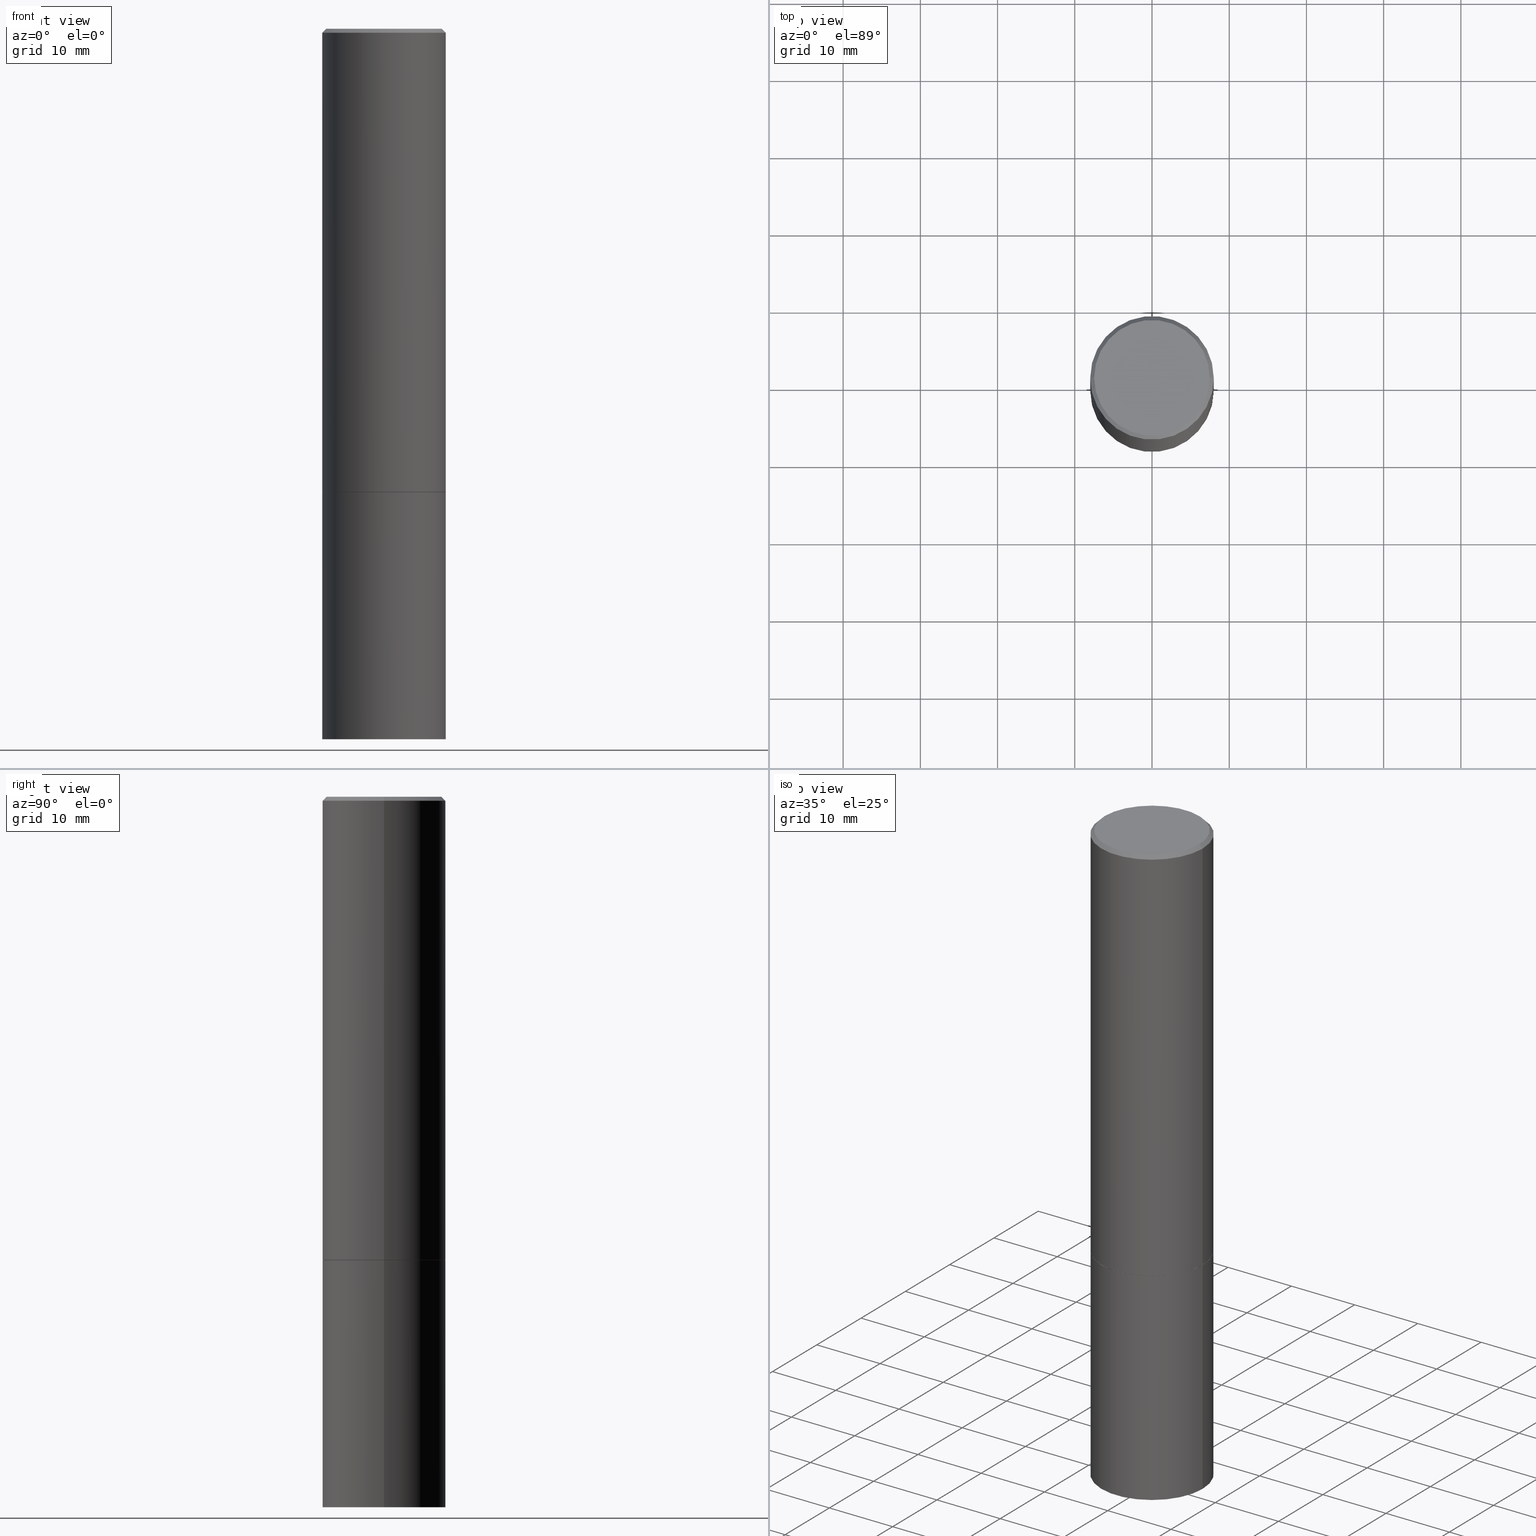
[diagram: canonical four-view strip — front | top / right | iso, engineering-drawing reading convention]
A machine part, canonical four-view strip (front | top / right | iso — engineering-drawing reading convention). The complete STEP part file that produces these views, byte-faithful:
ISO-10303-21;
HEADER;
FILE_DESCRIPTION (( 'STEP AP203' ),
    '1' );
FILE_NAME ('44725.STEP',
    '2024-02-28T07:54:57',
    ( '' ),
    ( '' ),
    'SwSTEP 2.0',
    'SolidWorks 2023',
    '' );
FILE_SCHEMA (( 'CONFIG_CONTROL_DESIGN' ));
ENDSEC;

DATA;
#1 = ORIENTED_EDGE ( 'NONE', *, *, #317, .T. ) ;
#2 = CC_DESIGN_PERSON_AND_ORGANIZATION_ASSIGNMENT ( #364, #88, ( #236 ) ) ;
#3 = CARTESIAN_POINT ( 'NONE',  ( 5.776686413970529753E-29, -8.247577218615278049E-15, -2.362199999999999633 ) ) ;
#4 = CLOSED_SHELL ( 'NONE', ( #354, #159, #183, #192 ) ) ;
#5 = COORDINATED_UNIVERSAL_TIME_OFFSET ( 5, 0, .BEHIND. ) ;
#6 = ORIENTED_EDGE ( 'NONE', *, *, #36, .T. ) ;
#7 = ORIENTED_EDGE ( 'NONE', *, *, #72, .T. ) ;
#8 = ORIENTED_EDGE ( 'NONE', *, *, #348, .F. ) ;
#9 = AXIS2_PLACEMENT_3D ( 'NONE', #248, #331, #166 ) ;
#10 = EDGE_CURVE ( 'NONE', #138, #300, #213, .T. ) ;
#11 = CARTESIAN_POINT ( 'NONE',  ( 2.199284095337378223E-15, 0.3149499999999873512, -3.622000000000000774 ) ) ;
#12 = LINE ( 'NONE', #353, #357 ) ;
#13 = MANIFOLD_SOLID_BREP ( 'Body-Move/Copy2[2]', #53 ) ;
#14 = DIRECTION ( 'NONE',  ( -1.000000000000000000, 6.982962677686265922E-15, -4.876176775795935793E-29 ) ) ;
#15 = DIRECTION ( 'NONE',  ( -2.445468806185136597E-29, 3.491481338843145583E-15, 1.000000000000000000 ) ) ;
#16 = FACE_OUTER_BOUND ( 'NONE', #173, .T. ) ;
#17 = EDGE_CURVE ( 'NONE', #231, #175, #350, .T. ) ;
#18 = DIRECTION ( 'NONE',  ( -2.445468806185136597E-29, 3.491481338843145583E-15, 1.000000000000000000 ) ) ;
#19 = APPLICATION_PROTOCOL_DEFINITION ( 'international standard', 'config_control_design', 1994, #100 ) ;
#20 = CIRCLE ( 'NONE', #69, 0.3149500000000000077 ) ;
#21 = CIRCLE ( 'NONE', #9, 0.3139500000000000068 ) ;
#22 = CC_DESIGN_PERSON_AND_ORGANIZATION_ASSIGNMENT ( #310, #259, ( #236 ) ) ;
#23 = PERSON_AND_ORGANIZATION_ROLE ( 'design_owner' ) ;
#24 = ORIENTED_EDGE ( 'NONE', *, *, #10, .T. ) ;
#25 = CARTESIAN_POINT ( 'NONE',  ( 4.890937612370288923E-31, -6.982962677686312563E-17, -0.02000000000000006287 ) ) ;
#26 = EDGE_CURVE ( 'NONE', #175, #366, #339, .T. ) ;
#27 = CARTESIAN_POINT ( 'NONE',  ( -2.087702828670439639E-46, 2.980686340760894400E-32, 8.537024980200822558E-18 ) ) ;
#28 = VERTEX_POINT ( 'NONE', #288 ) ;
#29 = CONICAL_SURFACE ( 'NONE', #235, 0.3149499999999997302, 0.7853981633974471688 ) ;
#30 = LOCAL_TIME ( 2, 54, 57.00000000000000000, #150 ) ;
#31 = ORIENTED_EDGE ( 'NONE', *, *, #91, .F. ) ;
#32 = PERSON_AND_ORGANIZATION ( #242, #303 ) ;
#33 = DIRECTION ( 'NONE',  ( -2.445468806185136877E-29, 3.491481338843145188E-15, 1.000000000000000000 ) ) ;
#34 = SHAPE_DEFINITION_REPRESENTATION ( #278, #255 ) ;
#35 = EDGE_LOOP ( 'NONE', ( #146, #1 ) ) ;
#36 = EDGE_CURVE ( 'NONE', #28, #264, #167, .T. ) ;
#37 = AXIS2_PLACEMENT_3D ( 'NONE', #309, #63, #176 ) ;
#38 = CC_DESIGN_APPROVAL ( #226, ( #116 ) ) ;
#39 = EDGE_CURVE ( 'NONE', #138, #143, #232, .T. ) ;
#40 = DIRECTION ( 'NONE',  ( 1.000000000000000000, -6.982962677686269077E-15, 0.000000000000000000 ) ) ;
#41 = PERSON_AND_ORGANIZATION_ROLE ( 'creator' ) ;
#42 = ORIENTED_EDGE ( 'NONE', *, *, #270, .T. ) ;
#43 = DIRECTION ( 'NONE',  ( -2.445468806185136597E-29, 3.491481338843145583E-15, 1.000000000000000000 ) ) ;
#44 = AXIS2_PLACEMENT_3D ( 'NONE', #274, #76, #190 ) ;
#45 =( GEOMETRIC_REPRESENTATION_CONTEXT ( 3 ) GLOBAL_UNCERTAINTY_ASSIGNED_CONTEXT ( ( #201 ) ) GLOBAL_UNIT_ASSIGNED_CONTEXT ( ( #305, #281, #145 ) ) REPRESENTATION_CONTEXT ( 'NONE', 'WORKASPACE' ) );
#46 = DIRECTION ( 'NONE',  ( -1.000000000000000000, 6.982962677686265922E-15, -4.876176775795935793E-29 ) ) ;
#47 = DIRECTION ( 'NONE',  ( -2.445468806185136597E-29, 3.491481338843145583E-15, 1.000000000000000000 ) ) ;
#48 = FACE_OUTER_BOUND ( 'NONE', #114, .T. ) ;
#49 = AXIS2_PLACEMENT_3D ( 'NONE', #93, #209, #316 ) ;
#50 = DIRECTION ( 'NONE',  ( 1.000000000000000000, -6.982962677686266711E-15, 4.876176775795936353E-29 ) ) ;
#51 = ORIENTED_EDGE ( 'NONE', *, *, #135, .F. ) ;
#52 = ADVANCED_FACE ( 'NONE', ( #343 ), #110, .T. ) ;
#53 = CLOSED_SHELL ( 'NONE', ( #52, #299, #321, #275, #169, #109, #58, #96 ) ) ;
#54 = ORIENTED_EDGE ( 'NONE', *, *, #359, .F. ) ;
#55 = CARTESIAN_POINT ( 'NONE',  ( 0.3149500000000000077, -1.044336983261372333E-14, -2.361199999999999743 ) ) ;
#56 = FACE_OUTER_BOUND ( 'NONE', #227, .T. ) ;
#57 = ORIENTED_EDGE ( 'NONE', *, *, #344, .F. ) ;
#58 = ADVANCED_FACE ( 'NONE', ( #311 ), #184, .F. ) ;
#59 = APPROVAL_STATUS ( 'not_yet_approved' ) ;
#60 = CC_DESIGN_DATE_AND_TIME_ASSIGNMENT ( #256, #263, ( #116 ) ) ;
#61 = ORIENTED_EDGE ( 'NONE', *, *, #17, .T. ) ;
#62 = APPROVAL_PERSON_ORGANIZATION ( #251, #295, #70 ) ;
#63 = DIRECTION ( 'NONE',  ( -2.445468806185136597E-29, 3.491481338843145583E-15, 1.000000000000000000 ) ) ;
#64 = COORDINATED_UNIVERSAL_TIME_OFFSET ( 5, 0, .BEHIND. ) ;
#65 = VERTEX_POINT ( 'NONE', #89 ) ;
#66 = ORIENTED_EDGE ( 'NONE', *, *, #245, .T. ) ;
#67 = APPLICATION_CONTEXT ( 'configuration controlled 3d designs of mechanical parts and assemblies' ) ;
#68 = AXIS2_PLACEMENT_3D ( 'NONE', #234, #154, #71 ) ;
#69 = AXIS2_PLACEMENT_3D ( 'NONE', #137, #360, #327 ) ;
#70 = APPROVAL_ROLE ( '' ) ;
#71 = DIRECTION ( 'NONE',  ( 1.000000000000000000, -6.982962677686263555E-15, 0.000000000000000000 ) ) ;
#72 = EDGE_CURVE ( 'NONE', #143, #149, #345, .T. ) ;
#73 = DIRECTION ( 'NONE',  ( -2.445468806185136597E-29, 3.491481338843145583E-15, 1.000000000000000000 ) ) ;
#74 = DIRECTION ( 'NONE',  ( 1.000000000000000000, -6.982962677686263555E-15, 0.000000000000000000 ) ) ;
#75 = DIRECTION ( 'NONE',  ( 1.000000000000000000, -6.982962677686265922E-15, 4.876176775795935232E-29 ) ) ;
#76 = DIRECTION ( 'NONE',  ( -2.445468806185136597E-29, 3.491481338843145583E-15, 1.000000000000000000 ) ) ;
#77 = CARTESIAN_POINT ( 'NONE',  ( 0.000000000000000000, 0.000000000000000000, 0.000000000000000000 ) ) ;
#78 = CONICAL_SURFACE ( 'NONE', #228, 0.3149499999999997302, 0.7853981633974471688 ) ;
#79 = CARTESIAN_POINT ( 'NONE',  ( 4.890937612370288923E-31, -6.982962677686312563E-17, -0.02000000000000006287 ) ) ;
#80 = ORIENTED_EDGE ( 'NONE', *, *, #365, .T. ) ;
#81 = FACE_OUTER_BOUND ( 'NONE', #195, .T. ) ;
#82 = CARTESIAN_POINT ( 'NONE',  ( 0.000000000000000000, 0.000000000000000000, 0.000000000000000000 ) ) ;
#83 = CONICAL_SURFACE ( 'NONE', #98, 0.3139500000000000068, 0.7853981633974141952 ) ;
#84 = VERTEX_POINT ( 'NONE', #241 ) ;
#85 = FACE_OUTER_BOUND ( 'NONE', #165, .T. ) ;
#86 = SECURITY_CLASSIFICATION_LEVEL ( 'unclassified' ) ;
#87 = ORIENTED_EDGE ( 'NONE', *, *, #186, .T. ) ;
#88 = PERSON_AND_ORGANIZATION_ROLE ( 'creator' ) ;
#89 = CARTESIAN_POINT ( 'NONE',  ( -0.2949499999999997124, 2.094539655171993740E-15, 8.537024980186296424E-18 ) ) ;
#90 = AXIS2_PLACEMENT_3D ( 'NONE', #77, #15, #50 ) ;
#91 = EDGE_CURVE ( 'NONE', #300, #149, #12, .T. ) ;
#92 = PERSON_AND_ORGANIZATION_ROLE ( 'classification_officer' ) ;
#93 = CARTESIAN_POINT ( 'NONE',  ( 5.776686413970529753E-29, -8.247577218615278049E-15, -2.362199999999999633 ) ) ;
#94 = COORDINATED_UNIVERSAL_TIME_OFFSET ( 5, 0, .BEHIND. ) ;
#95 = VERTEX_POINT ( 'NONE', #216 ) ;
#96 = ADVANCED_FACE ( 'NONE', ( #103 ), #326, .F. ) ;
#97 = EDGE_LOOP ( 'NONE', ( #265, #277, #66, #7 ) ) ;
#98 = AXIS2_PLACEMENT_3D ( 'NONE', #319, #129, #132 ) ;
#99 = CIRCLE ( 'NONE', #196, 0.3149499999999997302 ) ;
#100 = APPLICATION_CONTEXT ( 'configuration controlled 3d designs of mechanical parts and assemblies' ) ;
#101 = CARTESIAN_POINT ( 'NONE',  ( 0.3149500000000000077, -1.484542950462716186E-14, -3.621999999999999886 ) ) ;
#102 = PRODUCT_RELATED_PRODUCT_CATEGORY ( 'detail', '', ( #130 ) ) ;
#103 = FACE_OUTER_BOUND ( 'NONE', #35, .T. ) ;
#104 = FACE_OUTER_BOUND ( 'NONE', #301, .T. ) ;
#105 = EDGE_CURVE ( 'NONE', #300, #138, #123, .T. ) ;
#106 = CC_DESIGN_APPROVAL ( #295, ( #236 ) ) ;
#107 = PLANE ( 'NONE',  #247 ) ;
#108 = DIRECTION ( 'NONE',  ( -2.445468806185136877E-29, 3.491481338843145188E-15, 1.000000000000000000 ) ) ;
#109 = ADVANCED_FACE ( 'NONE', ( #351 ), #83, .T. ) ;
#110 = CONICAL_SURFACE ( 'NONE', #49, 0.3139500000000000068, 0.7853981633974141952 ) ;
#111 = DIRECTION ( 'NONE',  ( 1.000000000000000000, -6.982962677686266711E-15, 0.000000000000000000 ) ) ;
#112 = DIRECTION ( 'NONE',  ( -2.445468806185136597E-29, 3.491481338843145583E-15, 1.000000000000000000 ) ) ;
#113 = DIRECTION ( 'NONE',  ( 1.000000000000000000, -6.982962677686265922E-15, 4.876176775795935232E-29 ) ) ;
#114 = EDGE_LOOP ( 'NONE', ( #124, #341 ) ) ;
#115 = DIRECTION ( 'NONE',  ( 1.000000000000000000, -6.982962677686266711E-15, 4.876176775795936353E-29 ) ) ;
#116 = SECURITY_CLASSIFICATION ( '', '', #86 ) ;
#117 = CALENDAR_DATE ( 2024, 28, 2 ) ;
#118 = ORIENTED_EDGE ( 'NONE', *, *, #72, .F. ) ;
#119 = ORIENTED_EDGE ( 'NONE', *, *, #39, .F. ) ;
#120 = EDGE_CURVE ( 'NONE', #65, #84, #181, .T. ) ;
#121 = DATE_AND_TIME ( #285, #152 ) ;
#122 = ORIENTED_EDGE ( 'NONE', *, *, #245, .F. ) ;
#123 = CIRCLE ( 'NONE', #249, 0.3149500000000000077 ) ;
#124 = ORIENTED_EDGE ( 'NONE', *, *, #233, .T. ) ;
#125 = APPROVAL_STATUS ( 'not_yet_approved' ) ;
#126 = CARTESIAN_POINT ( 'NONE',  ( 8.857488016002564476E-29, -1.264614540928987199E-14, -3.621999999999999886 ) ) ;
#127 = CARTESIAN_POINT ( 'NONE',  ( 5.776686413970529753E-29, -8.247577218615278049E-15, -2.362199999999999633 ) ) ;
#128 = CARTESIAN_POINT ( 'NONE',  ( 5.774240945164344150E-29, -8.244085737276433464E-15, -2.361199999999999743 ) ) ;
#129 = DIRECTION ( 'NONE',  ( -2.445468806185136597E-29, 3.491481338843145583E-15, 1.000000000000000000 ) ) ;
#130 = PRODUCT ( '44725', '44725', '', ( #279 ) ) ;
#131 = EDGE_CURVE ( 'NONE', #84, #149, #191, .T. ) ;
#132 = DIRECTION ( 'NONE',  ( 1.000000000000000000, -6.982962677686269077E-15, 0.000000000000000000 ) ) ;
#133 = VECTOR ( 'NONE', #215, 39.37007874015748143 ) ;
#134 = DIRECTION ( 'NONE',  ( -1.000000000000000000, 6.982962677686265922E-15, -4.876176775795935793E-29 ) ) ;
#135 = EDGE_CURVE ( 'NONE', #264, #300, #320, .T. ) ;
#136 = DIRECTION ( 'NONE',  ( 2.438088387897960049E-29, -3.491481338843145188E-15, -1.000000000000000000 ) ) ;
#137 = CARTESIAN_POINT ( 'NONE',  ( 5.776686413970529753E-29, -8.247577218615278049E-15, -2.362199999999999633 ) ) ;
#138 = VERTEX_POINT ( 'NONE', #292 ) ;
#139 = AXIS2_PLACEMENT_3D ( 'NONE', #27, #18, #356 ) ;
#140 = APPROVAL_PERSON_ORGANIZATION ( #32, #208, #230 ) ;
#141 = MANIFOLD_SOLID_BREP ( 'Body-Move/Copy2[1]', #4 ) ;
#142 = CARTESIAN_POINT ( 'NONE',  ( 4.890937612370288923E-31, -6.982962677686312563E-17, -0.02000000000000006287 ) ) ;
#143 = VERTEX_POINT ( 'NONE', #161 ) ;
#144 = CYLINDRICAL_SURFACE ( 'NONE', #302, 0.3149500000000000077 ) ;
#145 =( NAMED_UNIT ( * ) SI_UNIT ( $, .STERADIAN. ) SOLID_ANGLE_UNIT ( ) );
#146 = ORIENTED_EDGE ( 'NONE', *, *, #120, .T. ) ;
#147 = ORIENTED_EDGE ( 'NONE', *, *, #10, .F. ) ;
#148 = DATE_AND_TIME ( #225, #323 ) ;
#149 = VERTEX_POINT ( 'NONE', #294 ) ;
#150 = COORDINATED_UNIVERSAL_TIME_OFFSET ( 5, 0, .BEHIND. ) ;
#151 = ORIENTED_EDGE ( 'NONE', *, *, #365, .F. ) ;
#152 = LOCAL_TIME ( 2, 54, 57.00000000000000000, #179 ) ;
#153 = APPROVAL_ROLE ( '' ) ;
#154 = DIRECTION ( 'NONE',  ( -2.445468806185136597E-29, 3.491481338843145583E-15, 1.000000000000000000 ) ) ;
#155 = CARTESIAN_POINT ( 'NONE',  ( -0.3149500000000000077, 2.237854346276435590E-15, -1.549218606675782676E-29 ) ) ;
#156 = DIRECTION ( 'NONE',  ( -2.445468806185136597E-29, 3.491481338843145583E-15, 1.000000000000000000 ) ) ;
#157 = AXIS2_PLACEMENT_3D ( 'NONE', #127, #335, #308 ) ;
#158 = DIMENSIONAL_EXPONENTS ( 1.000000000000000000, 0.000000000000000000, 0.000000000000000000, 0.000000000000000000, 0.000000000000000000, 0.000000000000000000, 0.000000000000000000 ) ;
#159 = ADVANCED_FACE ( 'NONE', ( #16 ), #271, .T. ) ;
#160 = LINE ( 'NONE', #297, #133 ) ;
#161 = CARTESIAN_POINT ( 'NONE',  ( -0.3149499999999997302, 2.129454468560424601E-15, -0.02000000000000006287 ) ) ;
#162 = CYLINDRICAL_SURFACE ( 'NONE', #90, 0.3149500000000000077 ) ;
#163 = CARTESIAN_POINT ( 'NONE',  ( 5.776686413970529753E-29, -8.247577218615278049E-15, -2.362199999999999633 ) ) ;
#164 = DIRECTION ( 'NONE',  ( -1.000000000000000000, 6.982962677686266711E-15, 0.000000000000000000 ) ) ;
#165 = EDGE_LOOP ( 'NONE', ( #221, #207, #283, #122 ) ) ;
#166 = DIRECTION ( 'NONE',  ( 1.000000000000000000, -6.982962677686269077E-15, 0.000000000000000000 ) ) ;
#167 = CIRCLE ( 'NONE', #313, 0.3139500000000000068 ) ;
#168 = PERSON_AND_ORGANIZATION ( #242, #303 ) ;
#169 = ADVANCED_FACE ( 'NONE', ( #211 ), #322, .T. ) ;
#170 = ORIENTED_EDGE ( 'NONE', *, *, #105, .F. ) ;
#171 = CC_DESIGN_PERSON_AND_ORGANIZATION_ASSIGNMENT ( #340, #92, ( #116 ) ) ;
#172 = LINE ( 'NONE', #218, #250 ) ;
#173 = EDGE_LOOP ( 'NONE', ( #361, #254 ) ) ;
#174 = APPROVAL_DATE_TIME ( #121, #226 ) ;
#175 = VERTEX_POINT ( 'NONE', #296 ) ;
#176 = DIRECTION ( 'NONE',  ( 1.000000000000000000, -6.982962677686266711E-15, 0.000000000000000000 ) ) ;
#177 = PERSON_AND_ORGANIZATION ( #242, #303 ) ;
#178 = EDGE_LOOP ( 'NONE', ( #200, #80, #170, #51 ) ) ;
#179 = COORDINATED_UNIVERSAL_TIME_OFFSET ( 5, 0, .BEHIND. ) ;
#180 = EDGE_LOOP ( 'NONE', ( #119, #24, #312, #118 ) ) ;
#181 = CIRCLE ( 'NONE', #44, 0.2949499999999997124 ) ;
#182 = DATE_AND_TIME ( #314, #214 ) ;
#183 = ADVANCED_FACE ( 'NONE', ( #48 ), #107, .F. ) ;
#184 = PLANE ( 'NONE',  #157 ) ;
#185 = LINE ( 'NONE', #268, #293 ) ;
#186 = EDGE_CURVE ( 'NONE', #231, #95, #160, .T. ) ;
#187 = CARTESIAN_POINT ( 'NONE',  ( 0.000000000000000000, 0.000000000000000000, 0.000000000000000000 ) ) ;
#188 = CIRCLE ( 'NONE', #139, 0.2949499999999997124 ) ;
#189 = DIRECTION ( 'NONE',  ( 1.000000000000000000, -6.982962677686266711E-15, 0.000000000000000000 ) ) ;
#190 = DIRECTION ( 'NONE',  ( 1.000000000000000000, -6.982962677686267499E-15, 4.876053491004739391E-29 ) ) ;
#191 = LINE ( 'NONE', #238, #203 ) ;
#192 = ADVANCED_FACE ( 'NONE', ( #104 ), #162, .T. ) ;
#193 = DIRECTION ( 'NONE',  ( -2.445468806185136597E-29, 3.491481338843145583E-15, 1.000000000000000000 ) ) ;
#194 = DIRECTION ( 'NONE',  ( 1.000000000000000000, 0.000000000000000000, 0.000000000000000000 ) ) ;
#195 = EDGE_LOOP ( 'NONE', ( #61, #246, #290, #224 ) ) ;
#196 = AXIS2_PLACEMENT_3D ( 'NONE', #79, #197, #111 ) ;
#197 = DIRECTION ( 'NONE',  ( -2.445468806185136597E-29, 3.491481338843145583E-15, 1.000000000000000000 ) ) ;
#198 = LENGTH_MEASURE_WITH_UNIT ( LENGTH_MEASURE( 0.02539999999999999897 ), #223 );
#199 = PERSON_AND_ORGANIZATION ( #242, #303 ) ;
#200 = ORIENTED_EDGE ( 'NONE', *, *, #348, .T. ) ;
#201 = UNCERTAINTY_MEASURE_WITH_UNIT (LENGTH_MEASURE( 1.000000000000000082E-05 ), #305, 'distance_accuracy_value', 'NONE');
#202 = CALENDAR_DATE ( 2024, 28, 2 ) ;
#203 = VECTOR ( 'NONE', #266, 39.37007874015748143 ) ;
#204 = PRODUCT_DEFINITION ( 'UNKNOWN', '', #236, #355 ) ;
#205 = DIRECTION ( 'NONE',  ( -2.445468806185136597E-29, 3.491481338843145583E-15, 1.000000000000000000 ) ) ;
#206 = DIRECTION ( 'NONE',  ( -2.445468806185136597E-29, 3.491481338843145583E-15, 1.000000000000000000 ) ) ;
#207 = ORIENTED_EDGE ( 'NONE', *, *, #131, .T. ) ;
#208 = APPROVAL ( #125, 'UNSPECIFIED' ) ;
#209 = DIRECTION ( 'NONE',  ( -2.445468806185136597E-29, 3.491481338843145583E-15, 1.000000000000000000 ) ) ;
#210 = CARTESIAN_POINT ( 'NONE',  ( 0.3139500000000000068, -1.043987835127488191E-14, -2.362199999999999633 ) ) ;
#211 = FACE_OUTER_BOUND ( 'NONE', #180, .T. ) ;
#212 = CARTESIAN_POINT ( 'NONE',  ( 0.3139500000000000068, -1.043987835127488191E-14, -2.362199999999999633 ) ) ;
#213 = CIRCLE ( 'NONE', #68, 0.3149500000000000077 ) ;
#214 = LOCAL_TIME ( 2, 54, 57.00000000000000000, #5 ) ;
#215 = DIRECTION ( 'NONE',  ( -2.445468806185136877E-29, 3.491481338843145188E-15, 1.000000000000000000 ) ) ;
#216 = CARTESIAN_POINT ( 'NONE',  ( 0.3149500000000000077, -1.044686131395256792E-14, -2.362199999999999633 ) ) ;
#217 = DIRECTION ( 'NONE',  ( 2.445468806185136597E-29, -3.491481338843145583E-15, -1.000000000000000000 ) ) ;
#218 = CARTESIAN_POINT ( 'NONE',  ( -0.3139500000000000068, -6.016828299696443861E-15, -2.362199999999999633 ) ) ;
#219 = DIRECTION ( 'NONE',  ( 0.000000000000000000, 0.000000000000000000, 1.000000000000000000 ) ) ;
#220 = CYLINDRICAL_SURFACE ( 'NONE', #336, 0.3149499999999998967 ) ;
#221 = ORIENTED_EDGE ( 'NONE', *, *, #317, .F. ) ;
#222 = CIRCLE ( 'NONE', #282, 0.3149500000000000077 ) ;
#223 =( LENGTH_UNIT ( ) NAMED_UNIT ( * ) SI_UNIT ( $, .METRE. ) );
#224 = ORIENTED_EDGE ( 'NONE', *, *, #186, .F. ) ;
#225 = CALENDAR_DATE ( 2024, 28, 2 ) ;
#226 = APPROVAL ( #59, 'UNSPECIFIED' ) ;
#227 = EDGE_LOOP ( 'NONE', ( #306, #252, #54, #31 ) ) ;
#228 = AXIS2_PLACEMENT_3D ( 'NONE', #142, #304, #329 ) ;
#229 = ORIENTED_EDGE ( 'NONE', *, *, #26, .F. ) ;
#230 = APPROVAL_ROLE ( '' ) ;
#231 = VERTEX_POINT ( 'NONE', #101 ) ;
#232 = LINE ( 'NONE', #346, #267 ) ;
#233 = EDGE_CURVE ( 'NONE', #95, #366, #222, .T. ) ;
#234 = CARTESIAN_POINT ( 'NONE',  ( 5.774240945164344150E-29, -8.244085737276433464E-15, -2.361199999999999743 ) ) ;
#235 = AXIS2_PLACEMENT_3D ( 'NONE', #25, #217, #164 ) ;
#236 = PRODUCT_DEFINITION_FORMATION_WITH_SPECIFIED_SOURCE ( 'ANY', '', #130, .NOT_KNOWN. ) ;
#237 = CARTESIAN_POINT ( 'NONE',  ( 2.199284095337347063E-15, 0.3149499999999917366, -2.362200000000000966 ) ) ;
#238 = CARTESIAN_POINT ( 'NONE',  ( 0.3149499999999997302, -2.230543471175005478E-15, -0.02000000000000006287 ) ) ;
#239 = DIRECTION ( 'NONE',  ( -0.7071067811865466846, 2.468850131082247989E-15, -0.7071067811865483499 ) ) ;
#240 = AXIS2_PLACEMENT_3D ( 'NONE', #325, #136, #134 ) ;
#241 = CARTESIAN_POINT ( 'NONE',  ( 0.2949499999999997124, -2.127023677808858103E-15, 8.537024980215462707E-18 ) ) ;
#242 = PERSON ( 'UNSPECIFIED', 'UNSPECIFIED', 'UNSPECIFIED', ('UNSPECIFIED'), ('UNSPECIFIED'), ('UNSPECIFIED') ) ;
#243 = DIRECTION ( 'NONE',  ( 0.7071067811865232589, -2.468850131082003836E-15, 0.7071067811865715536 ) ) ;
#244 = DIRECTION ( 'NONE',  ( -0.7071067811865232589, 7.493145998870265808E-15, 0.7071067811865715536 ) ) ;
#245 = EDGE_CURVE ( 'NONE', #65, #143, #185, .T. ) ;
#246 = ORIENTED_EDGE ( 'NONE', *, *, #26, .T. ) ;
#247 = AXIS2_PLACEMENT_3D ( 'NONE', #237, #349, #46 ) ;
#248 = CARTESIAN_POINT ( 'NONE',  ( 5.776686413970529753E-29, -8.247577218615278049E-15, -2.362199999999999633 ) ) ;
#249 = AXIS2_PLACEMENT_3D ( 'NONE', #128, #156, #74 ) ;
#250 = VECTOR ( 'NONE', #244, 39.37007874015748854 ) ;
#251 = PERSON_AND_ORGANIZATION ( #242, #303 ) ;
#252 = ORIENTED_EDGE ( 'NONE', *, *, #39, .T. ) ;
#253 = CC_DESIGN_DATE_AND_TIME_ASSIGNMENT ( #148, #333, ( #204 ) ) ;
#254 = ORIENTED_EDGE ( 'NONE', *, *, #270, .F. ) ;
#255 = ADVANCED_BREP_SHAPE_REPRESENTATION ( '44725', ( #141, #13, #337 ), #45 ) ;
#256 = DATE_AND_TIME ( #202, #30 ) ;
#257 = DIRECTION ( 'NONE',  ( 1.000000000000000000, -6.982962677686263555E-15, 0.000000000000000000 ) ) ;
#258 = VECTOR ( 'NONE', #33, 39.37007874015748143 ) ;
#259 = PERSON_AND_ORGANIZATION_ROLE ( 'design_supplier' ) ;
#260 = CIRCLE ( 'NONE', #363, 0.3149500000000000077 ) ;
#261 = APPROVAL_PERSON_ORGANIZATION ( #199, #226, #153 ) ;
#262 = EDGE_LOOP ( 'NONE', ( #8, #286 ) ) ;
#263 = DATE_TIME_ROLE ( 'classification_date' ) ;
#264 = VERTEX_POINT ( 'NONE', #210 ) ;
#265 = ORIENTED_EDGE ( 'NONE', *, *, #131, .F. ) ;
#266 = DIRECTION ( 'NONE',  ( 0.7071067811865466846, -7.319954787623252890E-15, -0.7071067811865483499 ) ) ;
#267 = VECTOR ( 'NONE', #284, 39.37007874015748143 ) ;
#268 = CARTESIAN_POINT ( 'NONE',  ( -0.3149499999999997302, 2.129454468560424601E-15, -0.02000000000000006287 ) ) ;
#269 = DIRECTION ( 'NONE',  ( 2.438088387897960049E-29, -3.491481338843145188E-15, -1.000000000000000000 ) ) ;
#270 = EDGE_CURVE ( 'NONE', #175, #231, #260, .T. ) ;
#271 = PLANE ( 'NONE',  #298 ) ;
#272 = VECTOR ( 'NONE', #243, 39.37007874015748854 ) ;
#273 = LOCAL_TIME ( 2, 54, 57.00000000000000000, #64 ) ;
#274 = CARTESIAN_POINT ( 'NONE',  ( -2.087702828670439639E-46, 2.980686340760894400E-32, 8.537024980200822558E-18 ) ) ;
#275 = ADVANCED_FACE ( 'NONE', ( #362 ), #29, .T. ) ;
#276 = CARTESIAN_POINT ( 'NONE',  ( 0.000000000000000000, 0.000000000000000000, 0.000000000000000000 ) ) ;
#277 = ORIENTED_EDGE ( 'NONE', *, *, #120, .F. ) ;
#278 = PRODUCT_DEFINITION_SHAPE ( 'NONE', 'NONE',  #204 ) ;
#279 = MECHANICAL_CONTEXT ( 'NONE', #100, 'mechanical' ) ;
#280 = EDGE_LOOP ( 'NONE', ( #151, #6, #330, #147 ) ) ;
#281 =( NAMED_UNIT ( * ) PLANE_ANGLE_UNIT ( ) SI_UNIT ( $, .RADIAN. ) );
#282 = AXIS2_PLACEMENT_3D ( 'NONE', #163, #73, #189 ) ;
#283 = ORIENTED_EDGE ( 'NONE', *, *, #359, .T. ) ;
#284 = DIRECTION ( 'NONE',  ( -2.445468806185136877E-29, 3.491481338843145188E-15, 1.000000000000000000 ) ) ;
#285 = CALENDAR_DATE ( 2024, 28, 2 ) ;
#286 = ORIENTED_EDGE ( 'NONE', *, *, #36, .F. ) ;
#287 = AXIS2_PLACEMENT_3D ( 'NONE', #187, #47, #75 ) ;
#288 = CARTESIAN_POINT ( 'NONE',  ( -0.3139500000000000068, -6.011529845348221459E-15, -2.362199999999999633 ) ) ;
#289 = APPLICATION_PROTOCOL_DEFINITION ( 'international standard', 'config_control_design', 1994, #67 ) ;
#290 = ORIENTED_EDGE ( 'NONE', *, *, #233, .F. ) ;
#291 = CARTESIAN_POINT ( 'NONE',  ( 8.857488016002564476E-29, -1.264614540928987199E-14, -3.621999999999999886 ) ) ;
#292 = CARTESIAN_POINT ( 'NONE',  ( -0.3149500000000000077, -1.919103335750211213E-15, -2.361199999999999743 ) ) ;
#293 = VECTOR ( 'NONE', #239, 39.37007874015748143 ) ;
#294 = CARTESIAN_POINT ( 'NONE',  ( 0.3149499999999997302, -2.230543471175005478E-15, -0.02000000000000006287 ) ) ;
#295 = APPROVAL ( #342, 'UNSPECIFIED' ) ;
#296 = CARTESIAN_POINT ( 'NONE',  ( -0.3149500000000000077, -8.209006967676139823E-15, -3.621999999999999886 ) ) ;
#297 = CARTESIAN_POINT ( 'NONE',  ( 0.3149500000000000077, -2.199284095337289871E-15, 1.535751875536930130E-29 ) ) ;
#298 = AXIS2_PLACEMENT_3D ( 'NONE', #11, #269, #14 ) ;
#299 = ADVANCED_FACE ( 'NONE', ( #56 ), #220, .T. ) ;
#300 = VERTEX_POINT ( 'NONE', #55 ) ;
#301 = EDGE_LOOP ( 'NONE', ( #229, #42, #87, #57 ) ) ;
#302 = AXIS2_PLACEMENT_3D ( 'NONE', #82, #193, #115 ) ;
#303 = ORGANIZATION ( 'UNSPECIFIED', 'UNSPECIFIED', '' ) ;
#304 = DIRECTION ( 'NONE',  ( 2.445468806185136597E-29, -3.491481338843145583E-15, -1.000000000000000000 ) ) ;
#305 =( CONVERSION_BASED_UNIT ( 'INCH', #198 ) LENGTH_UNIT ( ) NAMED_UNIT ( #158 ) );
#306 = ORIENTED_EDGE ( 'NONE', *, *, #105, .T. ) ;
#307 = DATE_AND_TIME ( #117, #273 ) ;
#308 = DIRECTION ( 'NONE',  ( 1.000000000000000000, -6.982962677686265922E-15, 4.876176775795935793E-29 ) ) ;
#309 = CARTESIAN_POINT ( 'NONE',  ( 4.890937612370288923E-31, -6.982962677686312563E-17, -0.02000000000000006287 ) ) ;
#310 = PERSON_AND_ORGANIZATION ( #242, #303 ) ;
#311 = FACE_OUTER_BOUND ( 'NONE', #262, .T. ) ;
#312 = ORIENTED_EDGE ( 'NONE', *, *, #91, .T. ) ;
#313 = AXIS2_PLACEMENT_3D ( 'NONE', #3, #206, #40 ) ;
#314 = CALENDAR_DATE ( 2024, 28, 2 ) ;
#315 = CC_DESIGN_SECURITY_CLASSIFICATION ( #116, ( #236 ) ) ;
#316 = DIRECTION ( 'NONE',  ( 1.000000000000000000, -6.982962677686269077E-15, 0.000000000000000000 ) ) ;
#317 = EDGE_CURVE ( 'NONE', #84, #65, #188, .T. ) ;
#318 = CC_DESIGN_PERSON_AND_ORGANIZATION_ASSIGNMENT ( #177, #41, ( #204 ) ) ;
#319 = CARTESIAN_POINT ( 'NONE',  ( 5.776686413970529753E-29, -8.247577218615278049E-15, -2.362199999999999633 ) ) ;
#320 = LINE ( 'NONE', #212, #272 ) ;
#321 = ADVANCED_FACE ( 'NONE', ( #85 ), #78, .T. ) ;
#322 = CYLINDRICAL_SURFACE ( 'NONE', #287, 0.3149499999999998967 ) ;
#323 = LOCAL_TIME ( 2, 54, 57.00000000000000000, #94 ) ;
#324 = CC_DESIGN_PERSON_AND_ORGANIZATION_ASSIGNMENT ( #168, #23, ( #130 ) ) ;
#325 = CARTESIAN_POINT ( 'NONE',  ( 2.059624841783562091E-15, 0.2949499999999997124, -1.025543908401684366E-15 ) ) ;
#326 = PLANE ( 'NONE',  #240 ) ;
#327 = DIRECTION ( 'NONE',  ( 1.000000000000000000, -6.982962677686266711E-15, 0.000000000000000000 ) ) ;
#328 = CARTESIAN_POINT ( 'NONE',  ( -0.3149500000000000077, -8.209006967676139823E-15, -2.362199999999999633 ) ) ;
#329 = DIRECTION ( 'NONE',  ( -1.000000000000000000, 6.982962677686266711E-15, 0.000000000000000000 ) ) ;
#330 = ORIENTED_EDGE ( 'NONE', *, *, #135, .T. ) ;
#331 = DIRECTION ( 'NONE',  ( -2.445468806185136597E-29, 3.491481338843145583E-15, 1.000000000000000000 ) ) ;
#332 = AXIS2_PLACEMENT_3D ( 'NONE', #126, #205, #257 ) ;
#333 = DATE_TIME_ROLE ( 'creation_date' ) ;
#334 = APPROVAL_DATE_TIME ( #182, #295 ) ;
#335 = DIRECTION ( 'NONE',  ( -2.438088387897960049E-29, 3.491481338843145188E-15, 1.000000000000000000 ) ) ;
#336 = AXIS2_PLACEMENT_3D ( 'NONE', #276, #112, #113 ) ;
#337 = AXIS2_PLACEMENT_3D ( 'NONE', #358, #219, #194 ) ;
#338 = APPROVAL_DATE_TIME ( #307, #208 ) ;
#339 = LINE ( 'NONE', #155, #258 ) ;
#340 = PERSON_AND_ORGANIZATION ( #242, #303 ) ;
#341 = ORIENTED_EDGE ( 'NONE', *, *, #344, .T. ) ;
#342 = APPROVAL_STATUS ( 'not_yet_approved' ) ;
#343 = FACE_OUTER_BOUND ( 'NONE', #178, .T. ) ;
#344 = EDGE_CURVE ( 'NONE', #366, #95, #20, .T. ) ;
#345 = CIRCLE ( 'NONE', #37, 0.3149499999999997302 ) ;
#346 = CARTESIAN_POINT ( 'NONE',  ( -0.3149499999999998967, 2.237854346276434801E-15, -1.549218606675782116E-29 ) ) ;
#347 = DIRECTION ( 'NONE',  ( 1.000000000000000000, -6.982962677686263555E-15, 0.000000000000000000 ) ) ;
#348 = EDGE_CURVE ( 'NONE', #264, #28, #21, .T. ) ;
#349 = DIRECTION ( 'NONE',  ( 2.438088387897960049E-29, -3.491481338843145188E-15, -1.000000000000000000 ) ) ;
#350 = CIRCLE ( 'NONE', #332, 0.3149500000000000077 ) ;
#351 = FACE_OUTER_BOUND ( 'NONE', #280, .T. ) ;
#352 = CC_DESIGN_APPROVAL ( #208, ( #204 ) ) ;
#353 = CARTESIAN_POINT ( 'NONE',  ( 0.3149499999999998967, -2.199284095337288688E-15, 1.535751875536929289E-29 ) ) ;
#354 = ADVANCED_FACE ( 'NONE', ( #81 ), #144, .T. ) ;
#355 = DESIGN_CONTEXT ( 'detailed design', #67, 'design' ) ;
#356 = DIRECTION ( 'NONE',  ( 1.000000000000000000, -6.982962677686267499E-15, 4.876053491004739391E-29 ) ) ;
#357 = VECTOR ( 'NONE', #108, 39.37007874015748143 ) ;
#358 = CARTESIAN_POINT ( 'NONE',  ( 0.000000000000000000, 0.000000000000000000, 0.000000000000000000 ) ) ;
#359 = EDGE_CURVE ( 'NONE', #149, #143, #99, .T. ) ;
#360 = DIRECTION ( 'NONE',  ( -2.445468806185136597E-29, 3.491481338843145583E-15, 1.000000000000000000 ) ) ;
#361 = ORIENTED_EDGE ( 'NONE', *, *, #17, .F. ) ;
#362 = FACE_OUTER_BOUND ( 'NONE', #97, .T. ) ;
#363 = AXIS2_PLACEMENT_3D ( 'NONE', #291, #43, #347 ) ;
#364 = PERSON_AND_ORGANIZATION ( #242, #303 ) ;
#365 = EDGE_CURVE ( 'NONE', #28, #138, #172, .T. ) ;
#366 = VERTEX_POINT ( 'NONE', #328 ) ;
ENDSEC;
END-ISO-10303-21;
